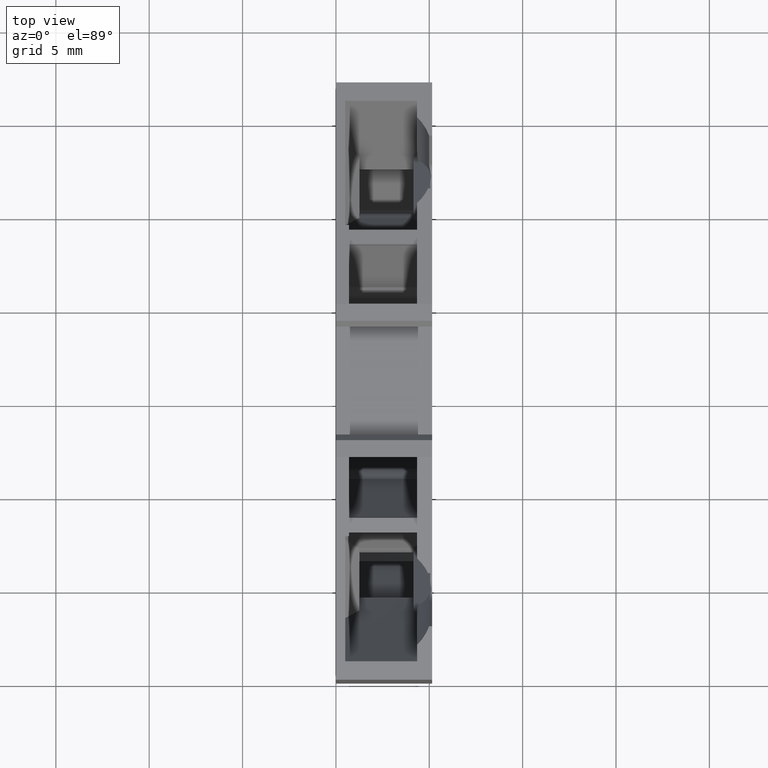
[diagram: clean part render]
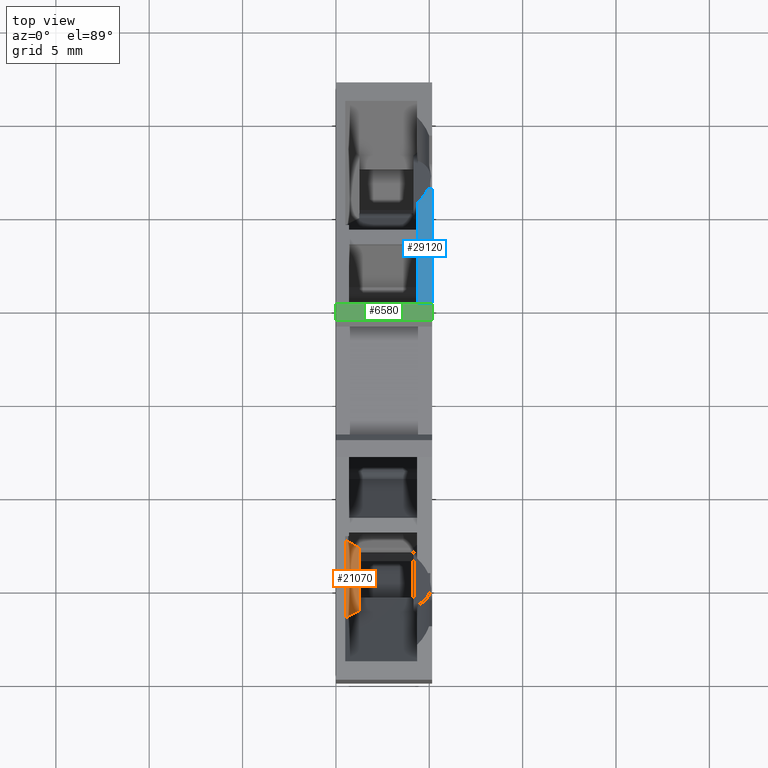
[diagram: same view with three faces highlighted in distinct colors, each labeled with its STEP entity id]
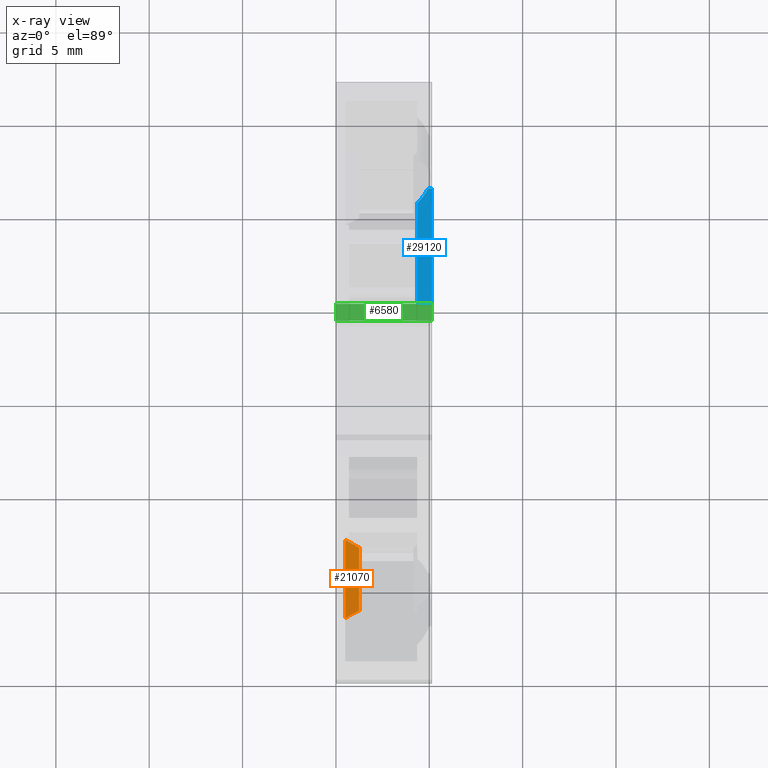
[diagram: x-ray of the same camera — body ghosted, the three highlighted faces saturated]
A machine part, top view with three faces highlighted in distinct colors.
The next image is the same camera in x-ray (body ghosted, the three faces saturated) — at least one of them is partly hidden behind the body in this view.
Their STEP definitions:

[orange] entity #21070 — the highlighted planar face has unit normal (-0.8, 0.1042, -0.5909).
#16920=CARTESIAN_POINT('',(-3.8830191283887,121.218214358894,
58.9499999999999));
#16930=VERTEX_POINT('',#16920);
#17250=CARTESIAN_POINT('',(30.7687890493708,145.481671657558,
31.4740145786492));
#17260=DIRECTION('',(-0.686963733598328,-0.481017184742238,
0.544704779401923));
#17270=VECTOR('',#17260,1.);
#17280=LINE('',#17250,#17270);
#17290=CARTESIAN_POINT('',(-4.82889443494379,120.555905339037,
59.6999999999999));
#17300=VERTEX_POINT('',#17290);
#17310=EDGE_CURVE('',#16930,#17300,#17280,.T.);
#18290=CARTESIAN_POINT('',(-5.32175304869625,126.189305072095,
59.6999999999999));
#18300=DIRECTION('',(0.0871557427476546,-0.996194698091746,
6.31088724176809E-30));
#18310=VECTOR('',#18300,1.);
#18320=LINE('',#18290,#18310);
#18330=CARTESIAN_POINT('',(-5.19758952738519,124.770109529414,
59.6999999999999));
#18340=VERTEX_POINT('',#18330);
#18350=EDGE_CURVE('',#18340,#17300,#18320,.T.);
#20540=CARTESIAN_POINT('',(0.0980121866522203,75.7148182090405,
58.9499999999999));
#20550=DIRECTION('',(0.0871557427476546,-0.996194698091746,
-1.31483125209823E-17));
#20560=VECTOR('',#20550,1.);
#20570=LINE('',#20540,#20560);
#20580=CARTESIAN_POINT('',(-4.17998732561921,124.612576385493,
58.9499999999999));
#20590=VERTEX_POINT('',#20580);
#20600=EDGE_CURVE('',#20590,#16930,#20570,.T.);
#20910=CARTESIAN_POINT('',(-3.99632159396087,122.513267466413,
58.9499999999999));
#20920=DIRECTION('',(0.597716818855048,0.0522934456485955,0.8));
#20930=DIRECTION('',(-0.796955758473397,-0.0697245941981273,
0.600000000000001));
#20940=AXIS2_PLACEMENT_3D('',#20910,#20920,#20930);
#20950=PLANE('',#20940);
#20960=ORIENTED_EDGE('',*,*,#20600,.T.);
#20970=CARTESIAN_POINT('',(30.7687890493708,119.202219952493,
33.1918184279163));
#20980=DIRECTION('',(-0.798806149230718,0.123661725430319,
0.588741465853042));
#20990=VECTOR('',#20980,1.);
#21000=LINE('',#20970,#20990);
#21010=EDGE_CURVE('',#20590,#18340,#21000,.T.);
#21020=ORIENTED_EDGE('',*,*,#21010,.F.);
#21030=ORIENTED_EDGE('',*,*,#18350,.F.);
#21040=ORIENTED_EDGE('',*,*,#17310,.T.);
#21050=EDGE_LOOP('',(#21040,#21030,#21020,#20960));
#21060=FACE_OUTER_BOUND('',#21050,.T.);
#21070=ADVANCED_FACE('',(#21060),#20950,.F.);

[blue] entity #29120 — the highlighted planar face has unit normal (-0, -0.1736, -0.9848).
#1460=CARTESIAN_POINT('',(-8.01189244908626,106.727795344089,55.05));
#1470=VERTEX_POINT('',#1460);
#1500=CARTESIAN_POINT('',(6.44969629117246,75.7148182090403,
55.0499999999999));
#1510=DIRECTION('',(0.422618261740696,-0.906307787036652,
-7.08496653485321E-16));
#1520=VECTOR('',#1510,1.);
#1530=LINE('',#1500,#1520);
#1540=CARTESIAN_POINT('',(-5.3493974001175,101.018056285753,55.05));
#1550=VERTEX_POINT('',#1540);
#1560=EDGE_CURVE('',#1470,#1550,#1530,.T.);
#5270=CARTESIAN_POINT('',(-6.1946339236013,102.830671859831,
59.4999999999999));
#5280=DIRECTION('',(0.906307787036652,0.422618261740696,
-4.01808419017144E-15));
#5290=DIRECTION('',(-0.422618261740696,0.906307787036652,
7.08496653485322E-16));
#5300=AXIS2_PLACEMENT_3D('',#5270,#5280,#5290);
#5310=PLANE('',#5300);
#5960=CARTESIAN_POINT('',(-8.01189244908639,106.727795344088,
1.19999999999993));
#5970=DIRECTION('',(3.9410446146663E-15,1.05599972183487E-15,1.));
#5980=VECTOR('',#5970,1.);
#5990=LINE('',#5960,#5980);
#6430=CARTESIAN_POINT('',(-8.01189244908478,106.727795344083,
55.8499999999999));
#6440=VERTEX_POINT('',#6430);
#6470=EDGE_CURVE('',#1470,#6440,#5990,.T.);
#26020=CARTESIAN_POINT('',(-5.68278183840317,101.733001520848,
55.8499999999999));
#26030=VERTEX_POINT('',#26020);
#26080=CARTESIAN_POINT('',(6.44969629117247,75.7148182090403,
55.8499999999999));
#26090=DIRECTION('',(-0.422618261740696,0.906307787036652,
1.46072630945981E-17));
#26100=VECTOR('',#26090,1.);
#26110=LINE('',#26080,#26100);
#26120=EDGE_CURVE('',#26030,#6440,#26110,.T.);
#28920=CARTESIAN_POINT('',(-4.92677913837665,100.111748498716,
57.4499998170948));
#28930=DIRECTION('',(-0.906307787036657,-0.422618261740684,
1.57772181044202E-30));
#28940=DIRECTION('',(-5.40362563226698E-14,1.15881125642399E-13,1.));
#28950=AXIS2_PLACEMENT_3D('',#28920,#28930,#28940);
#28960=CIRCLE('',#28950,2.40000017894275);
#28970=CARTESIAN_POINT('',(-5.34939740011746,101.018056285753,
55.2682571973239));
#28980=VERTEX_POINT('',#28970);
#28990=EDGE_CURVE('',#26030,#28980,#28960,.T.);
#29000=ORIENTED_EDGE('',*,*,#28990,.F.);
#29010=CARTESIAN_POINT('',(-5.34939740011768,101.018056285752,
1.19999999999992));
#29020=DIRECTION('',(3.64162099052122E-15,1.69811575597805E-15,1.));
#29030=VECTOR('',#29020,1.);
#29040=LINE('',#29010,#29030);
#29050=EDGE_CURVE('',#1550,#28980,#29040,.T.);
#29060=ORIENTED_EDGE('',*,*,#29050,.T.);
#29070=ORIENTED_EDGE('',*,*,#1560,.T.);
#29080=ORIENTED_EDGE('',*,*,#6470,.F.);
#29090=ORIENTED_EDGE('',*,*,#26120,.T.);
#29100=EDGE_LOOP('',(#29090,#29080,#29070,#29060,#29000));
#29110=FACE_OUTER_BOUND('',#29100,.T.);
#29120=ADVANCED_FACE('',(#29110),#5310,.F.);

[green] entity #6580 — the highlighted planar face has unit normal (-0, -0, -1).
#1380=CARTESIAN_POINT('',(-8.24581620230524,107.600810676199,55.05));
#1390=VERTEX_POINT('',#1380);
#1420=CARTESIAN_POINT('',(0.298009729134681,75.7148182090403,
55.0499999999999));
#1430=DIRECTION('',(0.258819045102517,-0.965925826289069,
2.44546880618514E-29));
#1440=VECTOR('',#1430,1.);
#1450=LINE('',#1420,#1440);
#1460=CARTESIAN_POINT('',(-8.01189244908626,106.727795344089,55.05));
#1470=VERTEX_POINT('',#1460);
#1480=EDGE_CURVE('',#1390,#1470,#1450,.T.);
#2630=CARTESIAN_POINT('',(-8.01189244908618,106.727795344088,60.2));
#2640=VERTEX_POINT('',#2630);
#2670=CARTESIAN_POINT('',(20.5857341233166,-2.32318015491964E-12,
60.1999999999995));
#2680=DIRECTION('',(-0.258819045102517,0.965925826289069,
4.08006961549743E-15));
#2690=VECTOR('',#2680,1.);
#2700=LINE('',#2670,#2690);
#2710=CARTESIAN_POINT('',(-8.24581620230523,107.600810676199,
60.2000000000002));
#2720=VERTEX_POINT('',#2710);
#2730=EDGE_CURVE('',#2640,#2720,#2700,.T.);
#5920=CARTESIAN_POINT('',(-8.01189244908387,106.727795344083,
59.4999999999999));
#5930=VERTEX_POINT('',#5920);
#5960=CARTESIAN_POINT('',(-8.01189244908639,106.727795344088,
1.19999999999993));
#5970=DIRECTION('',(3.9410446146663E-15,1.05599972183487E-15,1.));
#5980=VECTOR('',#5970,1.);
#5990=LINE('',#5960,#5980);
#6000=EDGE_CURVE('',#5930,#2640,#5990,.T.);
#6320=CARTESIAN_POINT('',(-6.66603341455347,101.704981047387,
55.0499999999999));
#6330=DIRECTION('',(0.965925826289069,0.258819045102517,
-4.08006961549746E-15));
#6340=DIRECTION('',(-0.258819045102517,0.96592582628907,
-2.44546880618514E-29));
#6350=AXIS2_PLACEMENT_3D('',#6320,#6330,#6340);
#6360=PLANE('',#6350);
#6370=ORIENTED_EDGE('',*,*,#2730,.T.);
#6380=ORIENTED_EDGE('',*,*,#6000,.T.);
#6390=CARTESIAN_POINT('',(-8.01189244908532,106.727795344084,
1.19999999999993));
#6400=DIRECTION('',(-9.89186988945812E-15,2.11527825506536E-14,-1.));
#6410=VECTOR('',#6400,1.);
#6420=LINE('',#6390,#6410);
#6430=CARTESIAN_POINT('',(-8.01189244908478,106.727795344083,
55.8499999999999));
#6440=VERTEX_POINT('',#6430);
#6450=EDGE_CURVE('',#5930,#6440,#6420,.T.);
#6460=ORIENTED_EDGE('',*,*,#6450,.F.);
#6470=EDGE_CURVE('',#1470,#6440,#5990,.T.);
#6480=ORIENTED_EDGE('',*,*,#6470,.T.);
#6490=ORIENTED_EDGE('',*,*,#1480,.T.);
#6500=CARTESIAN_POINT('',(-8.24581620230554,107.600810676199,
1.19999999999993));
#6510=DIRECTION('',(5.33443603384167E-15,-4.14420784935817E-15,1.));
#6520=VECTOR('',#6510,1.);
#6530=LINE('',#6500,#6520);
#6540=EDGE_CURVE('',#1390,#2720,#6530,.T.);
#6550=ORIENTED_EDGE('',*,*,#6540,.F.);
#6560=EDGE_LOOP('',(#6550,#6490,#6480,#6460,#6380,#6370));
#6570=FACE_OUTER_BOUND('',#6560,.T.);
#6580=ADVANCED_FACE('',(#6570),#6360,.F.);